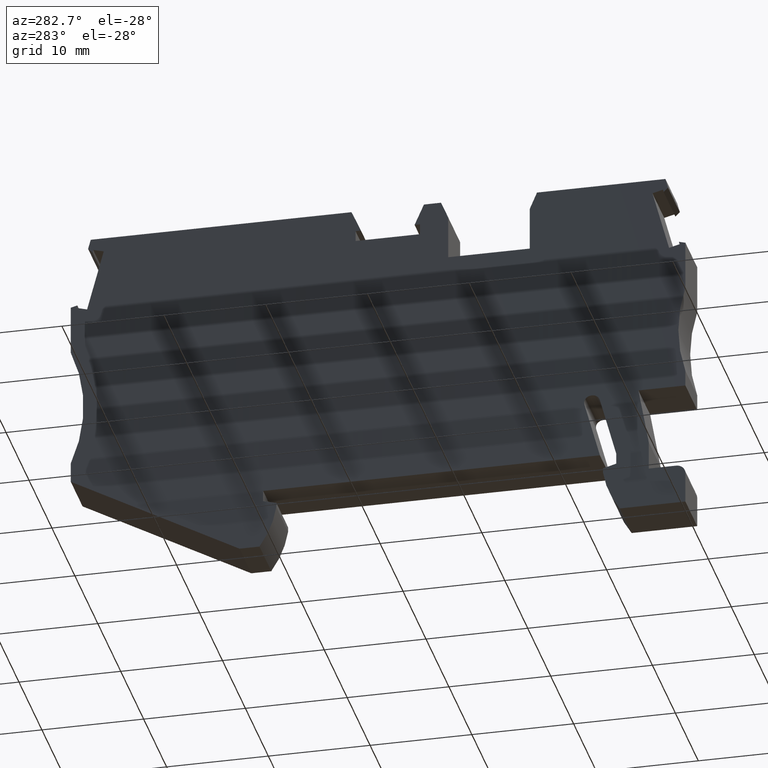
[diagram: clean part render]
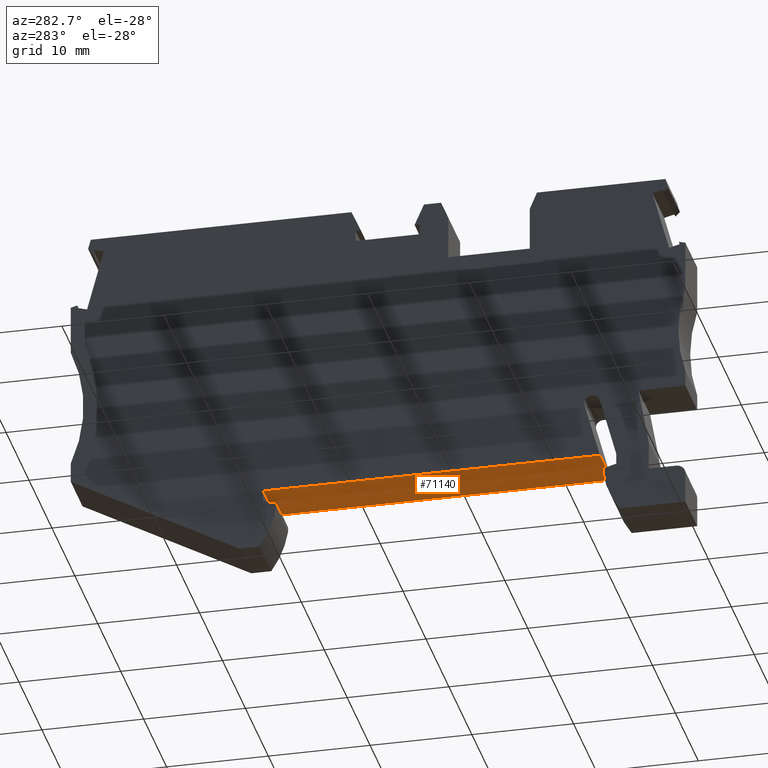
[diagram: same view with one face highlighted and labeled with its STEP entity id]
A machine part, auxiliary view. The second image highlights one B-rep face of the part: STEP entity #71140.
In plain terms, the highlighted planar face has unit normal (0, -0, -1).
Its self-contained STEP definition (entity closure, byte-faithful):
#2090=CARTESIAN_POINT('',(-13.9678327783236,-38.4000000000014,
48.5199999999872));
#2100=VERTEX_POINT('',#2090);
#2130=CARTESIAN_POINT('',(-34.2873043683385,-38.4000000000014,
48.5199999999788));
#2140=DIRECTION('',(-1.,4.16333634234434E-17,-4.0985636225261E-13));
#2150=VECTOR('',#2140,1.);
#2160=LINE('',#2130,#2150);
#2170=CARTESIAN_POINT('',(19.1321672216769,-38.4000000000014,
48.5200000000007));
#2180=VERTEX_POINT('',#2170);
#2190=EDGE_CURVE('',#2180,#2100,#2160,.T.);
#9140=CARTESIAN_POINT('',(19.1321672216748,-38.4000000000014,
53.6700000000007));
#9150=VERTEX_POINT('',#9140);
#9180=CARTESIAN_POINT('',(-34.2873043683406,-38.4000000000014,
53.6699999999788));
#9190=DIRECTION('',(-1.,4.16333634234434E-17,-4.0985636225261E-13));
#9200=VECTOR('',#9190,1.);
#9210=LINE('',#9180,#9200);
#9220=CARTESIAN_POINT('',(-13.9678327783257,-38.4000000000014,
53.6699999999872));
#9230=VERTEX_POINT('',#9220);
#9240=EDGE_CURVE('',#9150,#9230,#9210,.T.);
#70140=CARTESIAN_POINT('',(19.1321672216748,-38.4000000000014,
53.6700000000007));
#70150=DIRECTION('',(4.0985636225261E-13,-6.0174940938983E-25,-1.));
#70160=VECTOR('',#70150,1.);
#70170=LINE('',#70140,#70160);
#70180=EDGE_CURVE('',#9150,#2180,#70170,.T.);
#70980=CARTESIAN_POINT('',(-13.3162200919039,-38.4000000000014,
53.6699999999874));
#70990=DIRECTION('',(-4.16333634234434E-17,-1.,6.01732345690948E-25));
#71000=DIRECTION('',(-1.,4.16333634234434E-17,-4.0985636225261E-13));
#71010=AXIS2_PLACEMENT_3D('',#70980,#70990,#71000);
#71020=PLANE('',#71010);
#71030=ORIENTED_EDGE('',*,*,#9240,.T.);
#71040=ORIENTED_EDGE('',*,*,#70180,.F.);
#71050=ORIENTED_EDGE('',*,*,#2190,.F.);
#71060=CARTESIAN_POINT('',(-13.9678327783257,-38.4000000000014,
53.6699999999872));
#71070=DIRECTION('',(-4.0985636225261E-13,6.0174940938983E-25,1.));
#71080=VECTOR('',#71070,1.);
#71090=LINE('',#71060,#71080);
#71100=EDGE_CURVE('',#2100,#9230,#71090,.T.);
#71110=ORIENTED_EDGE('',*,*,#71100,.F.);
#71120=EDGE_LOOP('',(#71110,#71050,#71040,#71030));
#71130=FACE_OUTER_BOUND('',#71120,.T.);
#71140=ADVANCED_FACE('',(#71130),#71020,.T.);